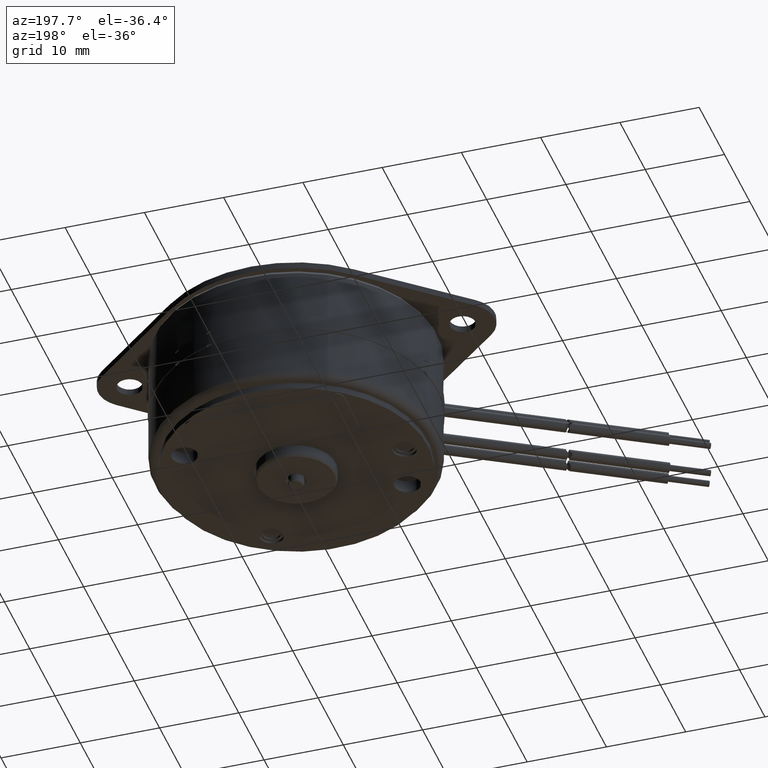
[diagram: clean part render]
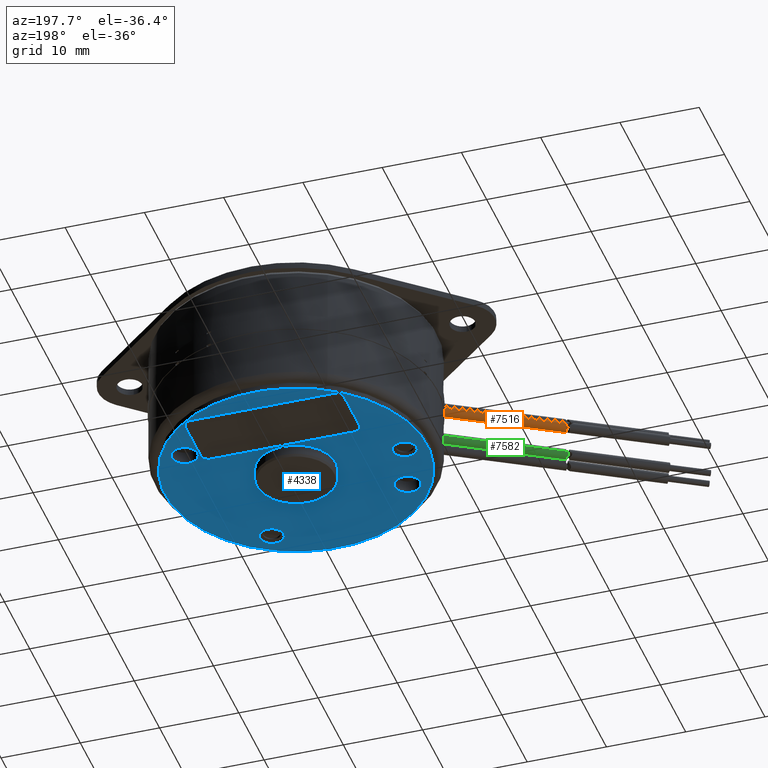
[diagram: same view with three faces highlighted in distinct colors, each labeled with its STEP entity id]
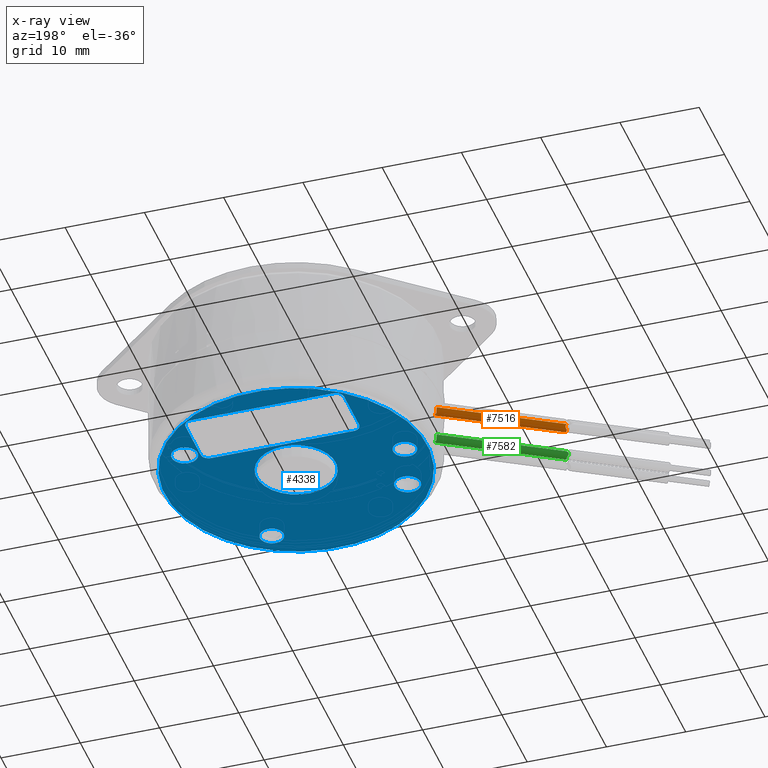
[diagram: x-ray of the same camera — body ghosted, the three highlighted faces saturated]
A machine part, auxiliary view with three faces highlighted in distinct colors.
The next image is the same camera in x-ray (body ghosted, the three faces saturated) — at least one of them is partly hidden behind the body in this view.
Their STEP definitions:

[orange] entity #7516 — the highlighted cylindrical surface (edge-blend (fillet) strip) has radius 0.635 mm, axis along (0.866, 0.5, 0).
#857=CARTESIAN_POINT('',(-5.841383878973E-1,-3.291695517279E-1,
8.000000000006E-2));
#869=CARTESIAN_POINT('',(-6.070680059422E-1,-2.846729459597E-1,8.E-2));
#871=CARTESIAN_POINT('',(-6.070680059422E-1,-2.846729459597E-1,8.E-2));
#872=CARTESIAN_POINT('',(-6.070680059422E-1,-2.846729459597E-1,
7.729210213432E-2));
#873=CARTESIAN_POINT('',(-6.067165800766E-1,-2.854243564023E-1,
7.217181656199E-2));
#874=CARTESIAN_POINT('',(-6.051460362116E-1,-2.887485265873E-1,
6.498387365906E-2));
#875=CARTESIAN_POINT('',(-6.027287944474E-1,-2.937714600944E-1,
5.946801220927E-2));
#876=CARTESIAN_POINT('',(-5.996229472728E-1,-3.000695549974E-1,
5.585831380795E-2));
#877=CARTESIAN_POINT('',(-5.960442646810E-1,-3.071206649319E-1,
5.458060716656E-2));
#878=CARTESIAN_POINT('',(-5.923885641370E-1,-3.141100741503E-1,
5.582461359902E-2));
#879=CARTESIAN_POINT('',(-5.890539748496E-1,-3.203112825754E-1,
5.940135739796E-2));
#880=CARTESIAN_POINT('',(-5.863377391853E-1,-3.252469468081E-1,
6.496697087410E-2));
#881=CARTESIAN_POINT('',(-5.845482548230E-1,-3.284438547412E-1,
7.215321369715E-2));
#882=CARTESIAN_POINT('',(-5.841383878973E-1,-3.291695517279E-1,
7.728626280376E-2));
#883=CARTESIAN_POINT('',(-5.841383878973E-1,-3.291695517279E-1,
8.000000000006E-2));
#2652=DIRECTION('',(8.660254037844E-1,5.E-1,0.E0));
#2653=VECTOR('',#2652,6.310023633E-1);
#2654=CARTESIAN_POINT('',(-1.153532082408E0,-6.001741276097E-1,8.E-2));
#2655=LINE('',#2654,#2653);
#2656=DIRECTION('',(-8.660254037845E-1,-4.999999999999E-1,1.332119218892E-13));
#2657=VECTOR('',#2656,6.286116921428E-1);
#2658=CARTESIAN_POINT('',(-5.841383878973E-1,-3.291695517279E-1,
8.000000000006E-2));
#2659=LINE('',#2658,#2657);
#2660=CARTESIAN_POINT('',(-1.153532082408E0,-6.001741276097E-1,8.E-2));
#2701=CARTESIAN_POINT('',(-1.153532082408E0,-6.001741276097E-1,8.E-2));
#2702=CARTESIAN_POINT('',(-1.152827162970E0,-5.997671421824E-1,
7.921219612269E-2));
#2703=CARTESIAN_POINT('',(-1.151527405574E0,-5.991022216591E-1,
7.765709005709E-2));
#2704=CARTESIAN_POINT('',(-1.149915997478E0,-5.985436429320E-1,
7.537782527281E-2));
#2705=CARTESIAN_POINT('',(-1.148681965157E0,-5.984210905259E-1,
7.321096268681E-2));
#2706=CARTESIAN_POINT('',(-1.147811478396E0,-5.986839970392E-1,
7.119853905261E-2));
#2707=CARTESIAN_POINT('',(-1.147232540341E0,-5.992882939203E-1,
6.927806619296E-2));
#2708=CARTESIAN_POINT('',(-1.146896032837E0,-6.002870743097E-1,
6.731437663137E-2));
#2709=CARTESIAN_POINT('',(-1.146813792168E0,-6.017820283143E-1,
6.526245561768E-2));
#2710=CARTESIAN_POINT('',(-1.146974040718E0,-6.038062228151E-1,
6.319420198931E-2));
#2711=CARTESIAN_POINT('',(-1.147281786503E0,-6.063048297284E-1,
6.119731117312E-2));
#2712=CARTESIAN_POINT('',(-1.147613313023E0,-6.094224467418E-1,
5.921164109005E-2));
#2713=CARTESIAN_POINT('',(-1.147705581278E0,-6.131047062184E-1,
5.739896806432E-2));
#2714=CARTESIAN_POINT('',(-1.147333398934E0,-6.166043734534E-1,
5.613137001714E-2));
#2715=CARTESIAN_POINT('',(-1.146567741221E0,-6.196868360333E-1,
5.536580494183E-2));
#2716=CARTESIAN_POINT('',(-1.145415704577E0,-6.225588421227E-1,
5.498617561119E-2));
#2717=CARTESIAN_POINT('',(-1.143902896463E0,-6.251883330176E-1,
5.498219198700E-2));
#2718=CARTESIAN_POINT('',(-1.142010399739E0,-6.276205073220E-1,
5.534838101475E-2));
#2719=CARTESIAN_POINT('',(-1.139710899043E0,-6.298498028300E-1,
5.611258390824E-2));
#2720=CARTESIAN_POINT('',(-1.136924446312E0,-6.318938969954E-1,5.734713975E-2));
#2721=CARTESIAN_POINT('',(-1.133707217159E0,-6.336658815458E-1,
5.913336564147E-2));
#2722=CARTESIAN_POINT('',(-1.130793013890E0,-6.349649817942E-1,
6.113677516795E-2));
#2723=CARTESIAN_POINT('',(-1.128446379154E0,-6.359588242797E-1,
6.314682553880E-2));
#2724=CARTESIAN_POINT('',(-1.126591209014E0,-6.368386095761E-1,
6.522596602026E-2));
#2725=CARTESIAN_POINT('',(-1.125318753674E0,-6.376652181020E-1,
6.729755466929E-2));
#2726=CARTESIAN_POINT('',(-1.124618126856E0,-6.384578684771E-1,
6.926613487260E-2));
#2727=CARTESIAN_POINT('',(-1.124381637216E0,-6.392598414080E-1,
7.118346884766E-2));
#2728=CARTESIAN_POINT('',(-1.124585179365E0,-6.401446416810E-1,
7.319567346515E-2));
#2729=CARTESIAN_POINT('',(-1.125307357240E0,-6.411544752229E-1,
7.536840606510E-2));
#2730=CARTESIAN_POINT('',(-1.126596919210E0,-6.422721023635E-1,
7.765086009290E-2));
#2731=CARTESIAN_POINT('',(-1.127825255958E0,-6.430673113575E-1,
7.921006488329E-2));
#2732=CARTESIAN_POINT('',(-1.128532082409E0,-6.434753977992E-1,
8.000000000014E-2));
#3872=VERTEX_POINT('',#857);
#3873=VERTEX_POINT('',#869);
#4143=VERTEX_POINT('',#2660);
#4145=CARTESIAN_POINT('',(-1.128532082409E0,-6.434753977992E-1,
8.000000000014E-2));
#4146=VERTEX_POINT('',#4145);
#7505=CARTESIAN_POINT('',(-1.594451281229E0,-8.836064591993E-1,8.E-2));
#7506=DIRECTION('',(8.660254037844E-1,5.E-1,0.E0));
#7507=DIRECTION('',(-5.E-1,8.660254037844E-1,0.E0));
#7508=AXIS2_PLACEMENT_3D('',#7505,#7506,#7507);
#7509=CYLINDRICAL_SURFACE('',#7508,2.499999999995E-2);
#7510=ORIENTED_EDGE('',*,*,#7485,.T.);
#7511=ORIENTED_EDGE('',*,*,#7461,.F.);
#7512=ORIENTED_EDGE('',*,*,#5240,.F.);
#7513=ORIENTED_EDGE('',*,*,#7458,.F.);
#7514=EDGE_LOOP('',(#7510,#7511,#7512,#7513));
#7515=FACE_OUTER_BOUND('',#7514,.F.);
#7516=ADVANCED_FACE('',(#7515),#7509,.T.);
#884=B_SPLINE_CURVE_WITH_KNOTS('',3,(#871,#872,#873,#874,#875,#876,#877,#878,
#879,#880,#881,#882,#883),.UNSPECIFIED.,.F.,.F.,(4,1,1,1,1,1,1,1,1,1,4),(0.E0,
1.E-1,2.E-1,3.E-1,4.E-1,5.E-1,6.E-1,7.E-1,8.E-1,9.E-1,1.E0),.UNSPECIFIED.);
#2733=B_SPLINE_CURVE_WITH_KNOTS('',3,(#2701,#2702,#2703,#2704,#2705,#2706,#2707,
#2708,#2709,#2710,#2711,#2712,#2713,#2714,#2715,#2716,#2717,#2718,#2719,#2720,
#2721,#2722,#2723,#2724,#2725,#2726,#2727,#2728,#2729,#2730,#2731,#2732),
.UNSPECIFIED.,.F.,.F.,(4,1,1,1,1,1,1,1,1,1,1,1,1,1,1,1,1,1,1,1,1,1,1,1,1,1,1,1,
1,4),(0.E0,3.448275862069E-2,6.896551724138E-2,1.034482758621E-1,
1.379310344828E-1,1.724137931034E-1,2.068965517241E-1,2.413793103448E-1,
2.758620689655E-1,3.103448275862E-1,3.448275862069E-1,3.793103448276E-1,
4.137931034483E-1,4.482758620690E-1,4.827586206897E-1,5.172413793103E-1,
5.517241379310E-1,5.862068965517E-1,6.206896551724E-1,6.551724137931E-1,
6.896551724138E-1,7.241379310345E-1,7.586206896552E-1,7.931034482759E-1,
8.275862068966E-1,8.620689655172E-1,8.965517241379E-1,9.310344827586E-1,
9.655172413793E-1,1.E0),.UNSPECIFIED.);
#5240=EDGE_CURVE('',#3873,#3872,#884,.T.);
#7458=EDGE_CURVE('',#4143,#3873,#2655,.T.);
#7461=EDGE_CURVE('',#3872,#4146,#2659,.T.);
#7485=EDGE_CURVE('',#4143,#4146,#2733,.T.);

[blue] entity #4338 — the highlighted planar face has unit normal (0, 0, 1).
#5=CARTESIAN_POINT('',(0.E0,0.E0,-3.52E-1));
#6=DIRECTION('',(0.E0,0.E0,1.E0));
#7=DIRECTION('',(-8.660254037844E-1,5.E-1,0.E0));
#8=AXIS2_PLACEMENT_3D('',#5,#6,#7);
#10=CARTESIAN_POINT('',(0.E0,0.E0,-3.52E-1));
#11=DIRECTION('',(0.E0,0.E0,1.E0));
#12=DIRECTION('',(8.660254037844E-1,-5.E-1,0.E0));
#13=AXIS2_PLACEMENT_3D('',#10,#11,#12);
#15=CARTESIAN_POINT('',(-4.676537180436E-1,-2.7E-1,-3.52E-1));
#16=DIRECTION('',(0.E0,0.E0,-1.E0));
#17=DIRECTION('',(-8.660254037845E-1,4.999999999998E-1,0.E0));
#18=AXIS2_PLACEMENT_3D('',#15,#16,#17);
#20=CARTESIAN_POINT('',(-4.676537180436E-1,-2.7E-1,-3.52E-1));
#21=DIRECTION('',(0.E0,0.E0,-1.E0));
#22=DIRECTION('',(8.660254037845E-1,-4.999999999998E-1,0.E0));
#23=AXIS2_PLACEMENT_3D('',#20,#21,#22);
#25=CARTESIAN_POINT('',(4.676537180436E-1,2.7E-1,-3.52E-1));
#26=DIRECTION('',(0.E0,0.E0,-1.E0));
#27=DIRECTION('',(-8.660254037843E-1,5.000000000002E-1,0.E0));
#28=AXIS2_PLACEMENT_3D('',#25,#26,#27);
#30=CARTESIAN_POINT('',(4.676537180436E-1,2.7E-1,-3.52E-1));
#31=DIRECTION('',(0.E0,0.E0,-1.E0));
#32=DIRECTION('',(8.660254037843E-1,-5.000000000002E-1,0.E0));
#33=AXIS2_PLACEMENT_3D('',#30,#31,#32);
#35=CARTESIAN_POINT('',(2.7E-1,-4.676537180436E-1,-3.52E-1));
#36=DIRECTION('',(0.E0,0.E0,-1.E0));
#37=DIRECTION('',(-4.999999999997E-1,8.660254037846E-1,0.E0));
#38=AXIS2_PLACEMENT_3D('',#35,#36,#37);
#40=CARTESIAN_POINT('',(2.7E-1,-4.676537180436E-1,-3.52E-1));
#41=DIRECTION('',(0.E0,0.E0,-1.E0));
#42=DIRECTION('',(4.999999999998E-1,-8.660254037846E-1,0.E0));
#43=AXIS2_PLACEMENT_3D('',#40,#41,#42);
#45=CARTESIAN_POINT('',(-5.4E-1,0.E0,-3.52E-1));
#46=DIRECTION('',(0.E0,0.E0,-1.E0));
#47=DIRECTION('',(1.E0,-3.591898020846E-13,0.E0));
#48=AXIS2_PLACEMENT_3D('',#45,#46,#47);
#50=CARTESIAN_POINT('',(-5.4E-1,0.E0,-3.52E-1));
#51=DIRECTION('',(0.E0,0.E0,-1.E0));
#52=DIRECTION('',(-1.E0,3.558771161629E-13,0.E0));
#53=AXIS2_PLACEMENT_3D('',#50,#51,#52);
#55=CARTESIAN_POINT('',(0.E0,0.E0,-3.52E-1));
#56=DIRECTION('',(0.E0,0.E0,-1.E0));
#57=DIRECTION('',(-4.999999999997E-1,-8.660254037846E-1,0.E0));
#58=AXIS2_PLACEMENT_3D('',#55,#56,#57);
#60=CARTESIAN_POINT('',(0.E0,0.E0,-3.52E-1));
#61=DIRECTION('',(0.E0,0.E0,-1.E0));
#62=DIRECTION('',(4.999999999997E-1,8.660254037846E-1,0.E0));
#63=AXIS2_PLACEMENT_3D('',#60,#61,#62);
#65=CARTESIAN_POINT('',(-3.543307086614E-1,4.882677165354E-1,-3.52E-1));
#66=DIRECTION('',(0.E0,0.E0,-1.E0));
#67=DIRECTION('',(-1.E0,-2.209443739080E-11,0.E0));
#68=AXIS2_PLACEMENT_3D('',#65,#66,#67);
#70=DIRECTION('',(1.E0,6.908917882260E-14,0.E0));
#71=VECTOR('',#70,7.086614173211E-1);
#72=CARTESIAN_POINT('',(-3.543307086601E-1,5.276377952756E-1,-3.52E-1));
#73=LINE('',#72,#71);
#74=CARTESIAN_POINT('',(3.543307086614E-1,4.882677165354E-1,-3.52E-1));
#75=DIRECTION('',(0.E0,0.E0,-1.E0));
#76=DIRECTION('',(-2.280647892758E-11,1.E0,0.E0));
#77=AXIS2_PLACEMENT_3D('',#74,#75,#76);
#79=DIRECTION('',(0.E0,-1.E0,0.E0));
#80=VECTOR('',#79,2.362204724408E-1);
#81=CARTESIAN_POINT('',(3.937007874016E-1,4.882677165354E-1,-3.52E-1));
#82=LINE('',#81,#80);
#83=CARTESIAN_POINT('',(3.543307086614E-1,2.520472440945E-1,-3.52E-1));
#84=DIRECTION('',(0.E0,0.E0,-1.E0));
#85=DIRECTION('',(1.E0,3.035693918460E-12,0.E0));
#86=AXIS2_PLACEMENT_3D('',#83,#84,#85);
#88=DIRECTION('',(-1.E0,6.967667183974E-14,0.E0));
#89=VECTOR('',#88,7.086614173216E-1);
#90=CARTESIAN_POINT('',(3.543307086614E-1,2.126771653543E-1,-3.52E-1));
#91=LINE('',#90,#89);
#92=CARTESIAN_POINT('',(-3.543307086614E-1,2.520472440945E-1,-3.52E-1));
#93=DIRECTION('',(0.E0,0.E0,-1.E0));
#94=DIRECTION('',(5.324237717382E-11,-1.E0,0.E0));
#95=AXIS2_PLACEMENT_3D('',#92,#93,#94);
#97=DIRECTION('',(0.E0,1.E0,0.E0));
#98=VECTOR('',#97,2.362204724398E-1);
#99=CARTESIAN_POINT('',(-3.937007874015E-1,2.520472440949E-1,-3.52E-1));
#100=LINE('',#99,#98);
#3995=CARTESIAN_POINT('',(5.650815759693E-1,-3.2625E-1,-3.52E-1));
#3996=VERTEX_POINT('',#3995);
#3997=CARTESIAN_POINT('',(-5.650815759693E-1,3.2625E-1,-3.52E-1));
#3998=VERTEX_POINT('',#3997);
#3999=CARTESIAN_POINT('',(-5.232958502368E-1,-2.37875E-1,-3.52E-1));
#4000=CARTESIAN_POINT('',(-4.120115858504E-1,-3.02125E-1,-3.52E-1));
#4001=VERTEX_POINT('',#3999);
#4002=VERTEX_POINT('',#4000);
#4003=CARTESIAN_POINT('',(4.120115858505E-1,3.02125E-1,-3.52E-1));
#4004=CARTESIAN_POINT('',(5.232958502367E-1,2.37875E-1,-3.52E-1));
#4005=VERTEX_POINT('',#4003);
#4006=VERTEX_POINT('',#4004);
#4007=CARTESIAN_POINT('',(2.40675E-1,-4.168613281116E-1,-3.52E-1));
#4008=CARTESIAN_POINT('',(2.99325E-1,-5.184461079756E-1,-3.52E-1));
#4009=VERTEX_POINT('',#4007);
#4010=VERTEX_POINT('',#4008);
#4011=CARTESIAN_POINT('',(-4.8135E-1,-2.106648189226E-14,-3.52E-1));
#4012=CARTESIAN_POINT('',(-5.9865E-1,2.087697851368E-14,-3.52E-1));
#4013=VERTEX_POINT('',#4011);
#4014=VERTEX_POINT('',#4012);
#4015=CARTESIAN_POINT('',(-9.842499999994E-2,-1.704771007350E-1,-3.52E-1));
#4016=CARTESIAN_POINT('',(9.842499999994E-2,1.704771007350E-1,-3.52E-1));
#4017=VERTEX_POINT('',#4015);
#4018=VERTEX_POINT('',#4016);
#4019=CARTESIAN_POINT('',(-3.937007874015E-1,4.882677165345E-1,-3.52E-1));
#4020=CARTESIAN_POINT('',(-3.543307086588E-1,5.276377952755E-1,-3.52E-1));
#4021=VERTEX_POINT('',#4019);
#4022=VERTEX_POINT('',#4020);
#4023=CARTESIAN_POINT('',(3.543307086610E-1,5.276377952756E-1,-3.52E-1));
#4024=VERTEX_POINT('',#4023);
#4025=CARTESIAN_POINT('',(3.937007874016E-1,4.882677165354E-1,-3.52E-1));
#4026=VERTEX_POINT('',#4025);
#4027=CARTESIAN_POINT('',(3.937007874016E-1,2.520472440945E-1,-3.52E-1));
#4028=VERTEX_POINT('',#4027);
#4029=CARTESIAN_POINT('',(3.543307086614E-1,2.126771653543E-1,-3.52E-1));
#4030=VERTEX_POINT('',#4029);
#4031=CARTESIAN_POINT('',(-3.543307086602E-1,2.126771653543E-1,-3.52E-1));
#4032=VERTEX_POINT('',#4031);
#4033=CARTESIAN_POINT('',(-3.937007874015E-1,2.520472440948E-1,-3.52E-1));
#4034=VERTEX_POINT('',#4033);
#4280=CARTESIAN_POINT('',(0.E0,0.E0,-3.52E-1));
#4281=DIRECTION('',(0.E0,0.E0,1.E0));
#4282=DIRECTION('',(8.660254037844E-1,-5.E-1,0.E0));
#4283=AXIS2_PLACEMENT_3D('',#4280,#4281,#4282);
#4284=PLANE('',#4283);
#4286=ORIENTED_EDGE('',*,*,#4285,.T.);
#4288=ORIENTED_EDGE('',*,*,#4287,.T.);
#4289=EDGE_LOOP('',(#4286,#4288));
#4290=FACE_OUTER_BOUND('',#4289,.F.);
#4292=ORIENTED_EDGE('',*,*,#4291,.T.);
#4294=ORIENTED_EDGE('',*,*,#4293,.T.);
#4295=EDGE_LOOP('',(#4292,#4294));
#4296=FACE_BOUND('',#4295,.F.);
#4298=ORIENTED_EDGE('',*,*,#4297,.T.);
#4300=ORIENTED_EDGE('',*,*,#4299,.T.);
#4301=EDGE_LOOP('',(#4298,#4300));
#4302=FACE_BOUND('',#4301,.F.);
#4304=ORIENTED_EDGE('',*,*,#4303,.T.);
#4306=ORIENTED_EDGE('',*,*,#4305,.T.);
#4307=EDGE_LOOP('',(#4304,#4306));
#4308=FACE_BOUND('',#4307,.F.);
#4310=ORIENTED_EDGE('',*,*,#4309,.T.);
#4312=ORIENTED_EDGE('',*,*,#4311,.T.);
#4313=EDGE_LOOP('',(#4310,#4312));
#4314=FACE_BOUND('',#4313,.F.);
#4316=ORIENTED_EDGE('',*,*,#4315,.T.);
#4318=ORIENTED_EDGE('',*,*,#4317,.T.);
#4319=EDGE_LOOP('',(#4316,#4318));
#4320=FACE_BOUND('',#4319,.F.);
#4322=ORIENTED_EDGE('',*,*,#4321,.T.);
#4324=ORIENTED_EDGE('',*,*,#4323,.T.);
#4326=ORIENTED_EDGE('',*,*,#4325,.T.);
#4327=ORIENTED_EDGE('',*,*,#4269,.T.);
#4329=ORIENTED_EDGE('',*,*,#4328,.T.);
#4331=ORIENTED_EDGE('',*,*,#4330,.T.);
#4333=ORIENTED_EDGE('',*,*,#4332,.T.);
#4335=ORIENTED_EDGE('',*,*,#4334,.T.);
#4336=EDGE_LOOP('',(#4322,#4324,#4326,#4327,#4329,#4331,#4333,#4335));
#4337=FACE_BOUND('',#4336,.F.);
#4338=ADVANCED_FACE('',(#4290,#4296,#4302,#4308,#4314,#4320,#4337),#4284,.F.);
#9=CIRCLE('',#8,6.525E-1);
#14=CIRCLE('',#13,6.525E-1);
#19=CIRCLE('',#18,6.425000000004E-2);
#24=CIRCLE('',#23,6.425000000004E-2);
#29=CIRCLE('',#28,6.424999999996E-2);
#34=CIRCLE('',#33,6.424999999996E-2);
#39=CIRCLE('',#38,5.865000000004E-2);
#44=CIRCLE('',#43,5.865000000004E-2);
#49=CIRCLE('',#48,5.865E-2);
#54=CIRCLE('',#53,5.865E-2);
#59=CIRCLE('',#58,1.9685E-1);
#64=CIRCLE('',#63,1.9685E-1);
#69=CIRCLE('',#68,3.937007874010E-2);
#78=CIRCLE('',#77,3.937007874020E-2);
#87=CIRCLE('',#86,3.937007874020E-2);
#96=CIRCLE('',#95,3.937007874010E-2);
#4269=EDGE_CURVE('',#4026,#4028,#82,.T.);
#4285=EDGE_CURVE('',#3998,#3996,#9,.T.);
#4287=EDGE_CURVE('',#3996,#3998,#14,.T.);
#4291=EDGE_CURVE('',#4001,#4002,#19,.T.);
#4293=EDGE_CURVE('',#4002,#4001,#24,.T.);
#4297=EDGE_CURVE('',#4005,#4006,#29,.T.);
#4299=EDGE_CURVE('',#4006,#4005,#34,.T.);
#4303=EDGE_CURVE('',#4009,#4010,#39,.T.);
#4305=EDGE_CURVE('',#4010,#4009,#44,.T.);
#4309=EDGE_CURVE('',#4013,#4014,#49,.T.);
#4311=EDGE_CURVE('',#4014,#4013,#54,.T.);
#4315=EDGE_CURVE('',#4017,#4018,#59,.T.);
#4317=EDGE_CURVE('',#4018,#4017,#64,.T.);
#4321=EDGE_CURVE('',#4021,#4022,#69,.T.);
#4323=EDGE_CURVE('',#4022,#4024,#73,.T.);
#4325=EDGE_CURVE('',#4024,#4026,#78,.T.);
#4328=EDGE_CURVE('',#4028,#4030,#87,.T.);
#4330=EDGE_CURVE('',#4030,#4032,#91,.T.);
#4332=EDGE_CURVE('',#4032,#4034,#96,.T.);
#4334=EDGE_CURVE('',#4034,#4021,#100,.T.);

[green] entity #7582 — the highlighted cylindrical surface (edge-blend (fillet) strip) has radius 0.635 mm, axis along (-0.866, -0.5, 0).
#921=CARTESIAN_POINT('',(-6.070680059423E-1,-2.846729459596E-1,
-7.999999999997E-2));
#922=CARTESIAN_POINT('',(-6.070680059423E-1,-2.846729459596E-1,
-8.270788728836E-2));
#923=CARTESIAN_POINT('',(-6.067165823897E-1,-2.854243513272E-1,
-8.782816308425E-2));
#924=CARTESIAN_POINT('',(-6.051460403281E-1,-2.887485184312E-1,
-9.501613511780E-2));
#925=CARTESIAN_POINT('',(-6.027287582125E-1,-2.937715343327E-1,
-1.005320394015E-1));
#926=CARTESIAN_POINT('',(-5.996230077699E-1,-3.000694308534E-1,
-1.041416029737E-1));
#927=CARTESIAN_POINT('',(-5.960443862719E-1,-3.071204335026E-1,
-1.054194446137E-1));
#928=CARTESIAN_POINT('',(-5.923883605795E-1,-3.141104577382E-1,
-1.041752418274E-1));
#929=CARTESIAN_POINT('',(-5.890541315424E-1,-3.203109909229E-1,
-1.005988103081E-1));
#930=CARTESIAN_POINT('',(-5.863377918603E-1,-3.252468539388E-1,
-9.503322274840E-2));
#931=CARTESIAN_POINT('',(-5.845482697470E-1,-3.284438278539E-1,
-8.784690490810E-2));
#932=CARTESIAN_POINT('',(-5.841383878974E-1,-3.291695517278E-1,
-8.271378301679E-2));
#933=CARTESIAN_POINT('',(-5.841383878974E-1,-3.291695517278E-1,-8.E-2));
#2792=DIRECTION('',(8.660254037844E-1,5.E-1,9.273406610639E-14));
#2793=VECTOR('',#2792,6.291347116940E-1);
#2794=CARTESIAN_POINT('',(-1.128985030627E0,-6.437369075748E-1,
-8.000000000006E-2));
#2795=LINE('',#2794,#2793);
#2796=DIRECTION('',(-8.660254037844E-1,-5.E-1,-8.910873749291E-14));
#2797=VECTOR('',#2796,6.315253828522E-1);
#2798=CARTESIAN_POINT('',(-6.070680059423E-1,-2.846729459596E-1,
-7.999999999997E-2));
#2799=LINE('',#2798,#2797);
#2800=CARTESIAN_POINT('',(-1.158963733352E0,-6.039207906917E-1,
-8.511510341590E-2));
#2801=CARTESIAN_POINT('',(-1.158312674451E0,-6.034202873257E-1,
-8.459880824629E-2));
#2802=CARTESIAN_POINT('',(-1.157075508257E0,-6.024882101434E-1,
-8.353490289597E-2));
#2803=CARTESIAN_POINT('',(-1.155403783996E0,-6.013073768276E-1,
-8.182089512352E-2));
#2804=CARTESIAN_POINT('',(-1.154435117082E0,-6.006954949218E-1,
-8.061803898820E-2));
#2805=CARTESIAN_POINT('',(-1.153985030627E0,-6.004356373857E-1,
-8.000000000003E-2));
#2834=CARTESIAN_POINT('',(-1.128985030627E0,-6.437369075748E-1,
-8.000000000006E-2));
#2835=CARTESIAN_POINT('',(-1.129434526814E0,-6.439964243195E-1,
-8.061722845808E-2));
#2836=CARTESIAN_POINT('',(-1.130447747764E0,-6.445289191406E-1,
-8.181917923193E-2));
#2837=CARTESIAN_POINT('',(-1.132306078295E0,-6.453862856351E-1,
-8.353349584706E-2));
#2838=CARTESIAN_POINT('',(-1.133732835117E0,-6.459921015265E-1,
-8.459826398393E-2));
#2839=CARTESIAN_POINT('',(-1.134492613289E0,-6.463060139597E-1,
-8.511510341589E-2));
#2845=CARTESIAN_POINT('',(-1.134492613289E0,-6.463060139597E-1,
-8.511510341589E-2));
#2846=CARTESIAN_POINT('',(-1.135065740263E0,-6.464704876445E-1,
-8.580461099604E-2));
#2847=CARTESIAN_POINT('',(-1.136093812684E0,-6.466618825465E-1,
-8.717515846336E-2));
#2848=CARTESIAN_POINT('',(-1.137262068765E0,-6.465509066237E-1,
-8.914692747872E-2));
#2849=CARTESIAN_POINT('',(-1.138130036311E0,-6.460420308969E-1,
-9.112650486420E-2));
#2850=CARTESIAN_POINT('',(-1.138700645619E0,-6.451103769637E-1,
-9.310568128623E-2));
#2851=CARTESIAN_POINT('',(-1.139006412810E0,-6.437244096429E-1,
-9.509765056556E-2));
#2852=CARTESIAN_POINT('',(-1.139098115787E0,-6.418467522350E-1,
-9.709780356971E-2));
#2853=CARTESIAN_POINT('',(-1.139073570320E0,-6.394548670425E-1,
-9.907945325653E-2));
#2854=CARTESIAN_POINT('',(-1.139093643243E0,-6.365297163895E-1,
-1.010001938900E-1));
#2855=CARTESIAN_POINT('',(-1.139396292023E0,-6.331393801788E-1,
-1.027304256905E-1));
#2856=CARTESIAN_POINT('',(-1.140157615850E0,-6.296227364167E-1,
-1.040390088599E-1));
#2857=CARTESIAN_POINT('',(-1.141403384610E0,-6.261687773180E-1,
-1.048315771544E-1));
#2858=CARTESIAN_POINT('',(-1.143004053992E0,-6.229959805068E-1,
-1.050823317458E-1));
#2859=CARTESIAN_POINT('',(-1.144947025387E0,-6.200191303231E-1,
-1.048390012712E-1));
#2860=CARTESIAN_POINT('',(-1.147304209773E0,-6.172130280355E-1,
-1.040579131715E-1));
#2861=CARTESIAN_POINT('',(-1.149994685440E0,-6.147632042992E-1,
-1.027417989655E-1));
#2862=CARTESIAN_POINT('',(-1.152800488456E0,-6.127911783223E-1,
-1.009993270986E-1));
#2863=CARTESIAN_POINT('',(-1.155342196316E0,-6.113015976023E-1,
-9.906187602201E-2));
#2864=CARTESIAN_POINT('',(-1.157414116629E0,-6.101332044054E-1,
-9.708654915659E-2));
#2865=CARTESIAN_POINT('',(-1.158988731062E0,-6.091177575660E-1,
-9.509178556497E-2));
#2866=CARTESIAN_POINT('',(-1.160035003383E0,-6.081594740153E-1,
-9.309857770351E-2));
#2867=CARTESIAN_POINT('',(-1.160553809405E0,-6.072014553835E-1,
-9.112368163588E-2));
#2868=CARTESIAN_POINT('',(-1.160560340442E0,-6.061968605182E-1,
-8.914717991609E-2));
#2869=CARTESIAN_POINT('',(-1.160073450684E0,-6.051309645537E-1,
-8.717771626625E-2));
#2870=CARTESIAN_POINT('',(-1.159393396897E0,-6.043355350625E-1,
-8.580567445427E-2));
#2871=CARTESIAN_POINT('',(-1.158963733352E0,-6.039207906917E-1,
-8.511510341590E-2));
#3878=VERTEX_POINT('',#921);
#3879=VERTEX_POINT('',#933);
#4150=VERTEX_POINT('',#2800);
#4151=VERTEX_POINT('',#2805);
#4152=VERTEX_POINT('',#2845);
#4153=VERTEX_POINT('',#2834);
#7564=CARTESIAN_POINT('',(-5.749624515249E-1,-2.950043089337E-1,
-7.999999999997E-2));
#7565=DIRECTION('',(-8.660254037844E-1,-5.E-1,0.E0));
#7566=DIRECTION('',(-5.E-1,8.660254037844E-1,0.E0));
#7567=AXIS2_PLACEMENT_3D('',#7564,#7565,#7566);
#7568=CYLINDRICAL_SURFACE('',#7567,2.499999999995E-2);
#7570=ORIENTED_EDGE('',*,*,#7569,.F.);
#7572=ORIENTED_EDGE('',*,*,#7571,.F.);
#7574=ORIENTED_EDGE('',*,*,#7573,.F.);
#7576=ORIENTED_EDGE('',*,*,#7575,.T.);
#7577=ORIENTED_EDGE('',*,*,#5254,.F.);
#7579=ORIENTED_EDGE('',*,*,#7578,.T.);
#7580=EDGE_LOOP('',(#7570,#7572,#7574,#7576,#7577,#7579));
#7581=FACE_OUTER_BOUND('',#7580,.F.);
#7582=ADVANCED_FACE('',(#7581),#7568,.T.);
#934=B_SPLINE_CURVE_WITH_KNOTS('',3,(#921,#922,#923,#924,#925,#926,#927,#928,
#929,#930,#931,#932,#933),.UNSPECIFIED.,.F.,.F.,(4,1,1,1,1,1,1,1,1,1,4),(0.E0,
1.E-1,2.E-1,3.E-1,4.E-1,5.E-1,6.E-1,7.E-1,8.E-1,9.E-1,1.E0),.UNSPECIFIED.);
#2806=B_SPLINE_CURVE_WITH_KNOTS('',3,(#2800,#2801,#2802,#2803,#2804,#2805),
.UNSPECIFIED.,.F.,.F.,(4,1,1,4),(0.E0,3.333333333333E-1,6.666666666667E-1,1.E0),
.UNSPECIFIED.);
#2840=B_SPLINE_CURVE_WITH_KNOTS('',3,(#2834,#2835,#2836,#2837,#2838,#2839),
.UNSPECIFIED.,.F.,.F.,(4,1,1,4),(0.E0,3.333333333333E-1,6.666666666667E-1,1.E0),
.UNSPECIFIED.);
#2872=B_SPLINE_CURVE_WITH_KNOTS('',3,(#2845,#2846,#2847,#2848,#2849,#2850,#2851,
#2852,#2853,#2854,#2855,#2856,#2857,#2858,#2859,#2860,#2861,#2862,#2863,#2864,
#2865,#2866,#2867,#2868,#2869,#2870,#2871),.UNSPECIFIED.,.F.,.F.,(4,1,1,1,1,1,1,
1,1,1,1,1,1,1,1,1,1,1,1,1,1,1,1,1,4),(0.E0,4.166666666667E-2,8.333333333333E-2,
1.25E-1,1.666666666667E-1,2.083333333333E-1,2.5E-1,2.916666666667E-1,
3.333333333333E-1,3.75E-1,4.166666666667E-1,4.583333333333E-1,5.E-1,
5.416666666667E-1,5.833333333333E-1,6.25E-1,6.666666666667E-1,7.083333333333E-1,
7.5E-1,7.916666666667E-1,8.333333333333E-1,8.75E-1,9.166666666667E-1,
9.583333333333E-1,1.E0),.UNSPECIFIED.);
#5254=EDGE_CURVE('',#3878,#3879,#934,.T.);
#7569=EDGE_CURVE('',#4150,#4151,#2806,.T.);
#7571=EDGE_CURVE('',#4152,#4150,#2872,.T.);
#7573=EDGE_CURVE('',#4153,#4152,#2840,.T.);
#7575=EDGE_CURVE('',#4153,#3879,#2795,.T.);
#7578=EDGE_CURVE('',#3878,#4151,#2799,.T.);